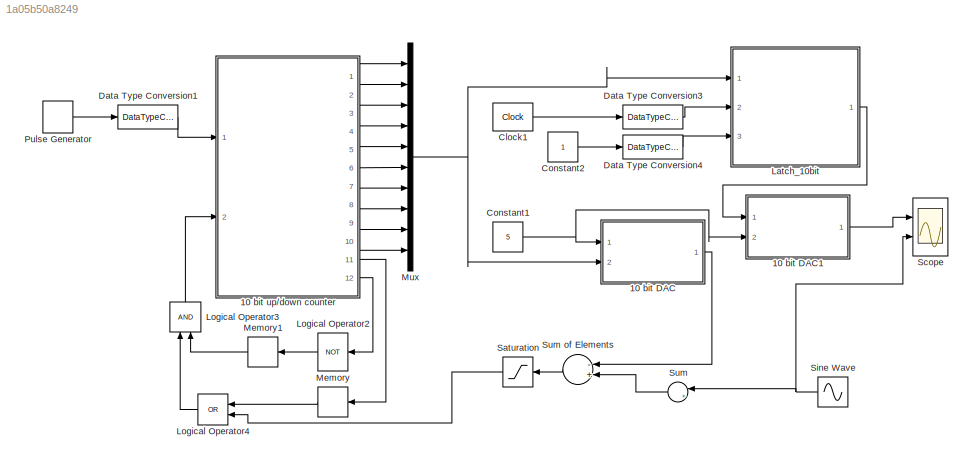
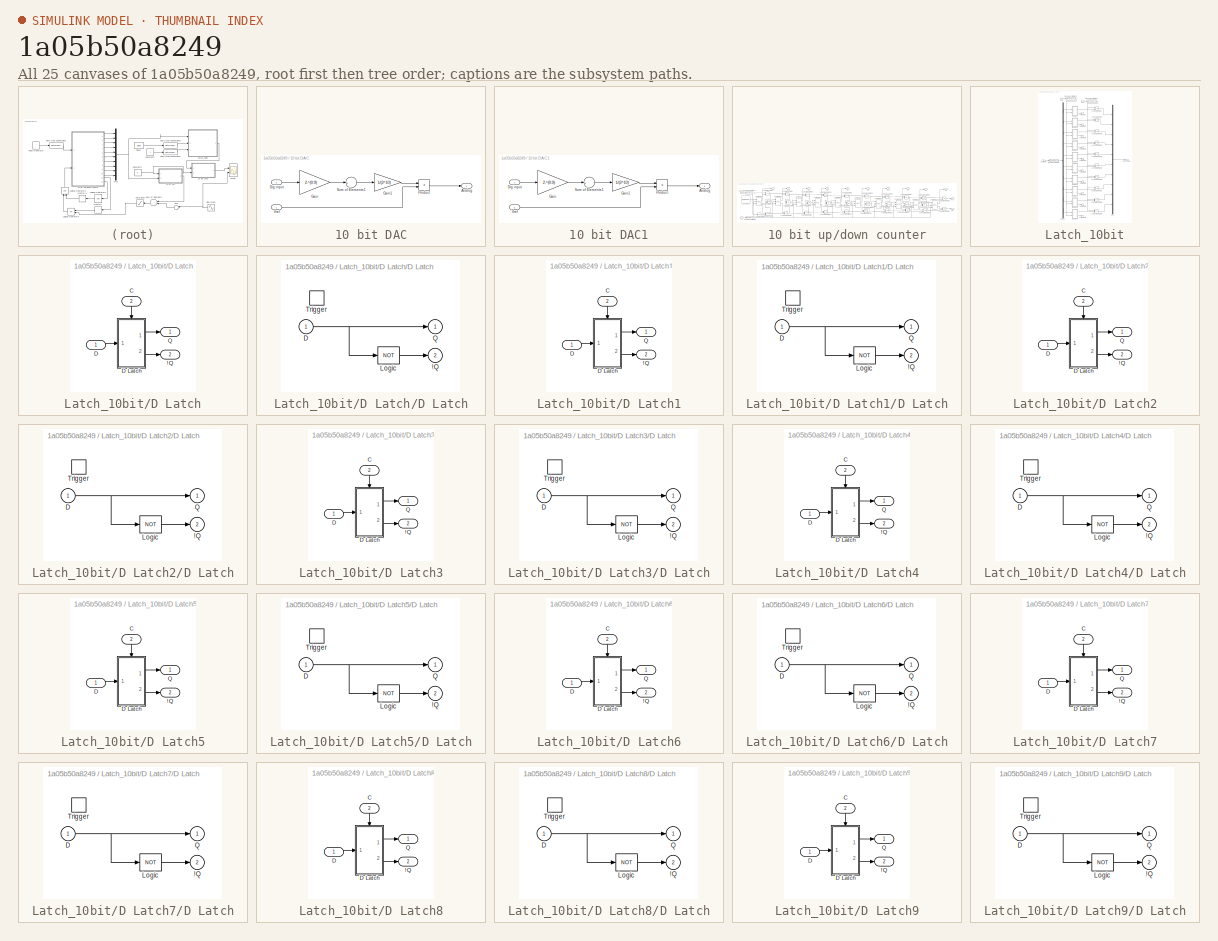
[diagram: thumbnail index - all 25 canvases of the model, root first then tree order]
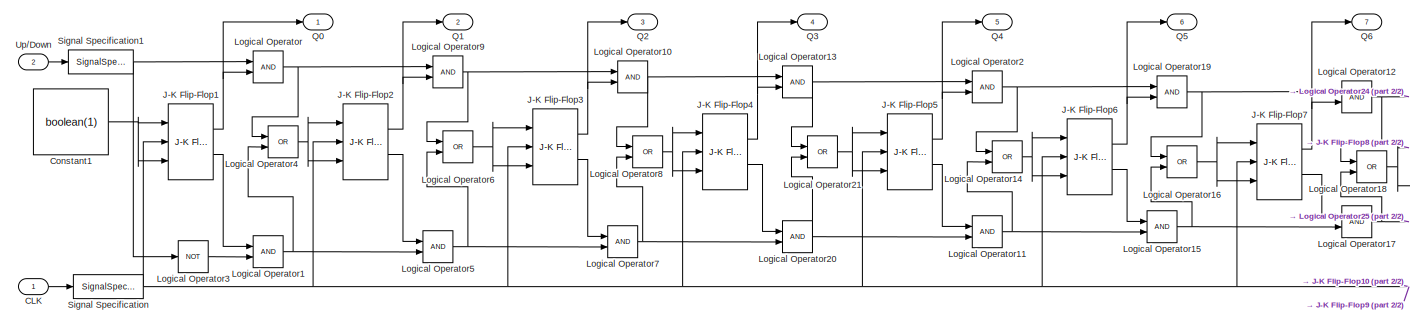
[diagram: 10 bit up/down counter - part 1/2, center side, full height]
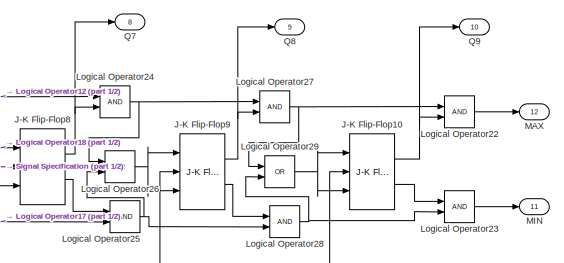
[diagram: 10 bit up/down counter - part 2/2, middle right region]
MODEL slx_1a05b50a8249
KIND model
CONFIG AbsTol = auto
CONFIG FixedStep = auto
CONFIG MaxStep = auto
CONFIG MinStep = auto
CONFIG RelTol = 1e-3
CONFIG SampleTimeConstraint = Unconstrained
CONFIG Solver = VariableStepAuto
CONFIG SolverMode = Auto
CONFIG SolverName = VariableStepAuto
CONFIG StartTime = 0.0
CONFIG StopTime = inf
BLOCK [SubSystem] 10 bit DAC
  Ports = [2, 1]
  RequestExecContextInheritance = off
  Variant = off
BLOCK [Outport] 10 bit DAC/Analog
  IconDisplay = Port number
BLOCK [Inport] 10 bit DAC/Dig input 
  IconDisplay = Port number
  Port = 2
BLOCK [Gain] 10 bit DAC/Gain
  Gain = 2.^(0:9)
  OutDataTypeStr = Inherit: Inherit via internal rule
  ParamDataTypeStr = Inherit: Inherit via internal rule
  SaturateOnIntegerOverflow = off
BLOCK [Gain] 10 bit DAC/Gain1
  Gain = 1/(2^10)
  OutDataTypeStr = Inherit: Inherit via internal rule
  ParamDataTypeStr = Inherit: Inherit via internal rule
  SaturateOnIntegerOverflow = off
BLOCK [Product] 10 bit DAC/Product
  InputSameDT = off
  OutDataTypeStr = Inherit: Inherit via internal rule
  Ports = [2, 1]
  SaturateOnIntegerOverflow = off
BLOCK [Sum] 10 bit DAC/Sum of Elements1
  InputSameDT = off
  Inputs = +
  OutDataTypeStr = Inherit: Inherit via internal rule
  Ports = [1, 1]
  SaturateOnIntegerOverflow = off
BLOCK [Inport] 10 bit DAC/Vref 
  IconDisplay = Port number
BLOCK [SubSystem] 10 bit DAC1
  Ports = [2, 1]
  RequestExecContextInheritance = off
  Variant = off
BLOCK [Outport] 10 bit DAC1/Analog
  IconDisplay = Port number
BLOCK [Inport] 10 bit DAC1/Dig input 
  IconDisplay = Port number
BLOCK [Gain] 10 bit DAC1/Gain
  Gain = 2.^(0:9)
  OutDataTypeStr = Inherit: Inherit via internal rule
  ParamDataTypeStr = Inherit: Inherit via internal rule
  SaturateOnIntegerOverflow = off
BLOCK [Gain] 10 bit DAC1/Gain1
  Gain = 1/(2^10)
  OutDataTypeStr = Inherit: Inherit via internal rule
  ParamDataTypeStr = Inherit: Inherit via internal rule
  SaturateOnIntegerOverflow = off
BLOCK [Product] 10 bit DAC1/Product
  InputSameDT = off
  OutDataTypeStr = Inherit: Inherit via internal rule
  Ports = [2, 1]
  SaturateOnIntegerOverflow = off
BLOCK [Sum] 10 bit DAC1/Sum of Elements1
  InputSameDT = off
  Inputs = +
  OutDataTypeStr = Inherit: Inherit via internal rule
  Ports = [1, 1]
  SaturateOnIntegerOverflow = off
BLOCK [Inport] 10 bit DAC1/Vref 
  IconDisplay = Port number
  Port = 2
BLOCK [SubSystem] 10 bit up//down counter
  Ports = [2, 12]
  RequestExecContextInheritance = off
  Variant = off
BLOCK [Inport] 10 bit up//down counter/CLK
  IconDisplay = Port number
BLOCK [Constant] 10 bit up//down counter/Constant1
  Value = boolean(1)
BLOCK [Reference] 10 bit up//down counter/J-K Flip-Flop1  REF=simulink_extras/Flip Flops/J-K
Flip-Flop
  Ports = [3, 2]
  SourceBlock = simulink_extras/Flip Flops/J-K\nFlip-Flop
  SourceType = JKFlipFlop
BLOCK [Reference] 10 bit up//down counter/J-K Flip-Flop10  REF=simulink_extras/Flip Flops/J-K
Flip-Flop
  Ports = [3, 2]
  SourceBlock = simulink_extras/Flip Flops/J-K\nFlip-Flop
  SourceType = JKFlipFlop
BLOCK [Reference] 10 bit up//down counter/J-K Flip-Flop2  REF=simulink_extras/Flip Flops/J-K
Flip-Flop
  Ports = [3, 2]
  SourceBlock = simulink_extras/Flip Flops/J-K\nFlip-Flop
  SourceType = JKFlipFlop
BLOCK [Reference] 10 bit up//down counter/J-K Flip-Flop3  REF=simulink_extras/Flip Flops/J-K
Flip-Flop
  Ports = [3, 2]
  SourceBlock = simulink_extras/Flip Flops/J-K\nFlip-Flop
  SourceType = JKFlipFlop
BLOCK [Reference] 10 bit up//down counter/J-K Flip-Flop4  REF=simulink_extras/Flip Flops/J-K
Flip-Flop
  Ports = [3, 2]
  SourceBlock = simulink_extras/Flip Flops/J-K\nFlip-Flop
  SourceType = JKFlipFlop
BLOCK [Reference] 10 bit up//down counter/J-K Flip-Flop5  REF=simulink_extras/Flip Flops/J-K
Flip-Flop
  Ports = [3, 2]
  SourceBlock = simulink_extras/Flip Flops/J-K\nFlip-Flop
  SourceType = JKFlipFlop
BLOCK [Reference] 10 bit up//down counter/J-K Flip-Flop6  REF=simulink_extras/Flip Flops/J-K
Flip-Flop
  Ports = [3, 2]
  SourceBlock = simulink_extras/Flip Flops/J-K\nFlip-Flop
  SourceType = JKFlipFlop
BLOCK [Reference] 10 bit up//down counter/J-K Flip-Flop7  REF=simulink_extras/Flip Flops/J-K
Flip-Flop
  Ports = [3, 2]
  SourceBlock = simulink_extras/Flip Flops/J-K\nFlip-Flop
  SourceType = JKFlipFlop
BLOCK [Reference] 10 bit up//down counter/J-K Flip-Flop8  REF=simulink_extras/Flip Flops/J-K
Flip-Flop
  Ports = [3, 2]
  SourceBlock = simulink_extras/Flip Flops/J-K\nFlip-Flop
  SourceType = JKFlipFlop
BLOCK [Reference] 10 bit up//down counter/J-K Flip-Flop9  REF=simulink_extras/Flip Flops/J-K
Flip-Flop
  Ports = [3, 2]
  SourceBlock = simulink_extras/Flip Flops/J-K\nFlip-Flop
  SourceType = JKFlipFlop
BLOCK [Logic] 10 bit up//down counter/Logical Operator
  AllPortsSameDT = off
  IconShape = distinctive
  OutDataTypeStr = boolean
  Ports = [2, 1]
BLOCK [Logic] 10 bit up//down counter/Logical Operator1
  AllPortsSameDT = off
  IconShape = distinctive
  OutDataTypeStr = boolean
  Ports = [2, 1]
BLOCK [Logic] 10 bit up//down counter/Logical Operator10
  AllPortsSameDT = off
  IconShape = distinctive
  OutDataTypeStr = boolean
  Ports = [2, 1]
BLOCK [Logic] 10 bit up//down counter/Logical Operator11
  AllPortsSameDT = off
  IconShape = distinctive
  OutDataTypeStr = boolean
  Ports = [2, 1]
BLOCK [Logic] 10 bit up//down counter/Logical Operator12
  AllPortsSameDT = off
  IconShape = distinctive
  OutDataTypeStr = boolean
  Ports = [2, 1]
BLOCK [Logic] 10 bit up//down counter/Logical Operator13
  AllPortsSameDT = off
  IconShape = distinctive
  OutDataTypeStr = boolean
  Ports = [2, 1]
BLOCK [Logic] 10 bit up//down counter/Logical Operator14
  AllPortsSameDT = off
  IconShape = distinctive
  Operator = OR
  OutDataTypeStr = boolean
  Ports = [2, 1]
BLOCK [Logic] 10 bit up//down counter/Logical Operator15
  AllPortsSameDT = off
  IconShape = distinctive
  OutDataTypeStr = boolean
  Ports = [2, 1]
BLOCK [Logic] 10 bit up//down counter/Logical Operator16
  AllPortsSameDT = off
  IconShape = distinctive
  Operator = OR
  OutDataTypeStr = boolean
  Ports = [2, 1]
BLOCK [Logic] 10 bit up//down counter/Logical Operator17
  AllPortsSameDT = off
  IconShape = distinctive
  OutDataTypeStr = boolean
  Ports = [2, 1]
BLOCK [Logic] 10 bit up//down counter/Logical Operator18
  AllPortsSameDT = off
  IconShape = distinctive
  Operator = OR
  OutDataTypeStr = boolean
  Ports = [2, 1]
BLOCK [Logic] 10 bit up//down counter/Logical Operator19
  AllPortsSameDT = off
  IconShape = distinctive
  OutDataTypeStr = boolean
  Ports = [2, 1]
BLOCK [Logic] 10 bit up//down counter/Logical Operator2
  AllPortsSameDT = off
  IconShape = distinctive
  OutDataTypeStr = boolean
  Ports = [2, 1]
BLOCK [Logic] 10 bit up//down counter/Logical Operator20
  AllPortsSameDT = off
  IconShape = distinctive
  OutDataTypeStr = boolean
  Ports = [2, 1]
BLOCK [Logic] 10 bit up//down counter/Logical Operator21
  AllPortsSameDT = off
  IconShape = distinctive
  Operator = OR
  OutDataTypeStr = boolean
  Ports = [2, 1]
BLOCK [Logic] 10 bit up//down counter/Logical Operator22
  AllPortsSameDT = off
  IconShape = distinctive
  OutDataTypeStr = boolean
  Ports = [2, 1]
BLOCK [Logic] 10 bit up//down counter/Logical Operator23
  AllPortsSameDT = off
  IconShape = distinctive
  OutDataTypeStr = boolean
  Ports = [2, 1]
BLOCK [Logic] 10 bit up//down counter/Logical Operator24
  AllPortsSameDT = off
  IconShape = distinctive
  OutDataTypeStr = boolean
  Ports = [2, 1]
BLOCK [Logic] 10 bit up//down counter/Logical Operator25
  AllPortsSameDT = off
  IconShape = distinctive
  OutDataTypeStr = boolean
  Ports = [2, 1]
BLOCK [Logic] 10 bit up//down counter/Logical Operator26
  AllPortsSameDT = off
  IconShape = distinctive
  Operator = OR
  OutDataTypeStr = boolean
  Ports = [2, 1]
BLOCK [Logic] 10 bit up//down counter/Logical Operator27
  AllPortsSameDT = off
  IconShape = distinctive
  OutDataTypeStr = boolean
  Ports = [2, 1]
BLOCK [Logic] 10 bit up//down counter/Logical Operator28
  AllPortsSameDT = off
  IconShape = distinctive
  OutDataTypeStr = boolean
  Ports = [2, 1]
BLOCK [Logic] 10 bit up//down counter/Logical Operator29
  AllPortsSameDT = off
  IconShape = distinctive
  Operator = OR
  OutDataTypeStr = boolean
  Ports = [2, 1]
BLOCK [Logic] 10 bit up//down counter/Logical Operator3
  AllPortsSameDT = off
  IconShape = distinctive
  Operator = NOT
  OutDataTypeStr = boolean
  Ports = [1, 1]
BLOCK [Logic] 10 bit up//down counter/Logical Operator4
  AllPortsSameDT = off
  IconShape = distinctive
  Operator = OR
  OutDataTypeStr = boolean
  Ports = [2, 1]
BLOCK [Logic] 10 bit up//down counter/Logical Operator5
  AllPortsSameDT = off
  IconShape = distinctive
  OutDataTypeStr = boolean
  Ports = [2, 1]
BLOCK [Logic] 10 bit up//down counter/Logical Operator6
  AllPortsSameDT = off
  IconShape = distinctive
  Operator = OR
  OutDataTypeStr = boolean
  Ports = [2, 1]
BLOCK [Logic] 10 bit up//down counter/Logical Operator7
  AllPortsSameDT = off
  IconShape = distinctive
  OutDataTypeStr = boolean
  Ports = [2, 1]
BLOCK [Logic] 10 bit up//down counter/Logical Operator8
  AllPortsSameDT = off
  IconShape = distinctive
  Operator = OR
  OutDataTypeStr = boolean
  Ports = [2, 1]
BLOCK [Logic] 10 bit up//down counter/Logical Operator9
  AllPortsSameDT = off
  IconShape = distinctive
  OutDataTypeStr = boolean
  Ports = [2, 1]
BLOCK [Outport] 10 bit up//down counter/MAX
  IconDisplay = Port number
  InitialOutput = 0
  Port = 12
BLOCK [Outport] 10 bit up//down counter/MIN
  IconDisplay = Port number
  InitialOutput = 0
  Port = 11
BLOCK [Outport] 10 bit up//down counter/Q0
  IconDisplay = Port number
  InitialOutput = 0
BLOCK [Outport] 10 bit up//down counter/Q1
  IconDisplay = Port number
  InitialOutput = 0
  Port = 2
BLOCK [Outport] 10 bit up//down counter/Q2
  IconDisplay = Port number
  InitialOutput = 0
  Port = 3
BLOCK [Outport] 10 bit up//down counter/Q3
  IconDisplay = Port number
  InitialOutput = 0
  Port = 4
BLOCK [Outport] 10 bit up//down counter/Q4
  IconDisplay = Port number
  InitialOutput = 0
  Port = 5
BLOCK [Outport] 10 bit up//down counter/Q5
  IconDisplay = Port number
  InitialOutput = 0
  Port = 6
BLOCK [Outport] 10 bit up//down counter/Q6
  IconDisplay = Port number
  InitialOutput = 0
  Port = 7
BLOCK [Outport] 10 bit up//down counter/Q7
  IconDisplay = Port number
  InitialOutput = 0
  Port = 8
BLOCK [Outport] 10 bit up//down counter/Q8
  IconDisplay = Port number
  InitialOutput = 0
  Port = 9
BLOCK [Outport] 10 bit up//down counter/Q9
  IconDisplay = Port number
  InitialOutput = 0
  Port = 10
BLOCK [SignalSpecification] 10 bit up//down counter/Signal Specification
  OutDataTypeStr = boolean
BLOCK [SignalSpecification] 10 bit up//down counter/Signal Specification1
  OutDataTypeStr = boolean
BLOCK [Inport] 10 bit up//down counter/Up//Down
  IconDisplay = Port number
  Port = 2
BLOCK [Reference] Clock1  REF=simulink_extras/Flip Flops/Clock
  Ports = [0, 1]
  SourceBlock = simulink_extras/Flip Flops/Clock
  SourceType = Digital clock
BLOCK [Constant] Constant1
  Value = 5
BLOCK [Constant] Constant2
BLOCK [DataTypeConversion] Data Type Conversion1
  OutDataTypeStr = boolean
  RndMeth = Floor
  SaturateOnIntegerOverflow = off
BLOCK [DataTypeConversion] Data Type Conversion3
  OutDataTypeStr = boolean
  RndMeth = Floor
  SaturateOnIntegerOverflow = off
BLOCK [DataTypeConversion] Data Type Conversion4
  OutDataTypeStr = boolean
  RndMeth = Floor
  SaturateOnIntegerOverflow = off
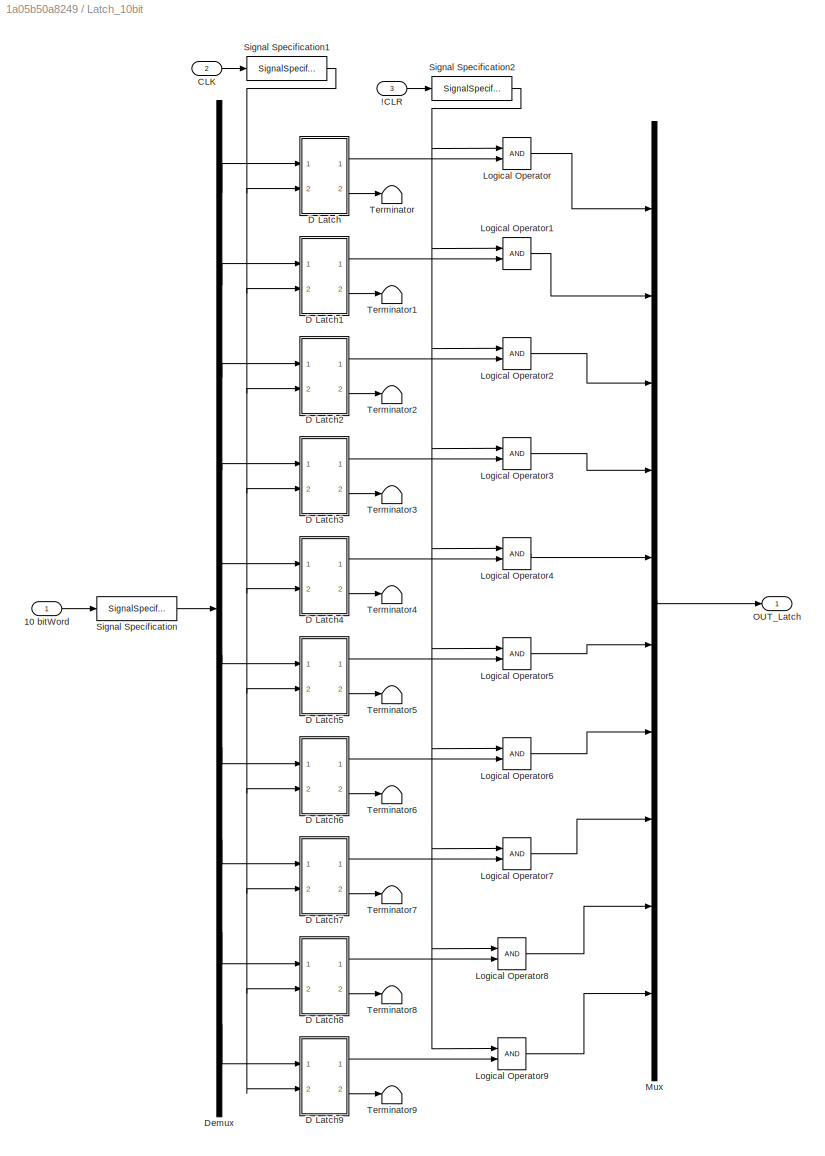
BLOCK [SubSystem] Latch_10bit
  AncestorBlock = Digital_8bit_Library/Latch_8bit
  Ports = [3, 1]
  RequestExecContextInheritance = off
  Variant = off
BLOCK [Inport] Latch_10bit/!CLR
  IconDisplay = Port number
  Port = 3
BLOCK [Inport] Latch_10bit/10 bitWord
  IconDisplay = Port number
BLOCK [Inport] Latch_10bit/CLK
  IconDisplay = Port number
  Port = 2
BLOCK [SubSystem] Latch_10bit/D Latch
  Ports = [2, 2]
  RequestExecContextInheritance = off
  Variant = off
BLOCK [Outport] Latch_10bit/D Latch/!Q
  IconDisplay = Port number
  InitialOutput = 1
  Port = 2
BLOCK [Inport] Latch_10bit/D Latch/C
  IconDisplay = Port number
  Port = 2
BLOCK [Inport] Latch_10bit/D Latch/D
  IconDisplay = Port number
BLOCK [SubSystem] Latch_10bit/D Latch/D Latch
  Ports = [1, 2, 0, 1]
  RequestExecContextInheritance = off
  TreatAsAtomicUnit = on
  Variant = off
BLOCK [Outport] Latch_10bit/D Latch/D Latch/!Q
  IconDisplay = Port number
  InitialOutput = 1
  Port = 2
BLOCK [Inport] Latch_10bit/D Latch/D Latch/D
  IconDisplay = Port number
BLOCK [Logic] Latch_10bit/D Latch/D Latch/Logic
  Inputs = 1
  Operator = NOT
  Ports = [1, 1]
BLOCK [Outport] Latch_10bit/D Latch/D Latch/Q
  IconDisplay = Port number
  InitialOutput = 0
BLOCK [TriggerPort] Latch_10bit/D Latch/D Latch/Trigger
  Ports = []
  StatesWhenEnabling = held
  VariantControl = Variant
BLOCK [Outport] Latch_10bit/D Latch/Q
  IconDisplay = Port number
  InitialOutput = 0
BLOCK [SubSystem] Latch_10bit/D Latch1
  Ports = [2, 2]
  RequestExecContextInheritance = off
  Variant = off
BLOCK [Outport] Latch_10bit/D Latch1/!Q
  IconDisplay = Port number
  InitialOutput = 1
  Port = 2
BLOCK [Inport] Latch_10bit/D Latch1/C
  IconDisplay = Port number
  Port = 2
BLOCK [Inport] Latch_10bit/D Latch1/D
  IconDisplay = Port number
BLOCK [SubSystem] Latch_10bit/D Latch1/D Latch
  Ports = [1, 2, 0, 1]
  RequestExecContextInheritance = off
  TreatAsAtomicUnit = on
  Variant = off
BLOCK [Outport] Latch_10bit/D Latch1/D Latch/!Q
  IconDisplay = Port number
  InitialOutput = 1
  Port = 2
BLOCK [Inport] Latch_10bit/D Latch1/D Latch/D
  IconDisplay = Port number
BLOCK [Logic] Latch_10bit/D Latch1/D Latch/Logic
  Inputs = 1
  Operator = NOT
  Ports = [1, 1]
BLOCK [Outport] Latch_10bit/D Latch1/D Latch/Q
  IconDisplay = Port number
  InitialOutput = 0
BLOCK [TriggerPort] Latch_10bit/D Latch1/D Latch/Trigger
  Ports = []
  StatesWhenEnabling = held
  VariantControl = Variant
BLOCK [Outport] Latch_10bit/D Latch1/Q
  IconDisplay = Port number
  InitialOutput = 0
BLOCK [SubSystem] Latch_10bit/D Latch2
  Ports = [2, 2]
  RequestExecContextInheritance = off
  Variant = off
BLOCK [Outport] Latch_10bit/D Latch2/!Q
  IconDisplay = Port number
  InitialOutput = 1
  Port = 2
BLOCK [Inport] Latch_10bit/D Latch2/C
  IconDisplay = Port number
  Port = 2
BLOCK [Inport] Latch_10bit/D Latch2/D
  IconDisplay = Port number
BLOCK [SubSystem] Latch_10bit/D Latch2/D Latch
  Ports = [1, 2, 0, 1]
  RequestExecContextInheritance = off
  TreatAsAtomicUnit = on
  Variant = off
BLOCK [Outport] Latch_10bit/D Latch2/D Latch/!Q
  IconDisplay = Port number
  InitialOutput = 1
  Port = 2
BLOCK [Inport] Latch_10bit/D Latch2/D Latch/D
  IconDisplay = Port number
BLOCK [Logic] Latch_10bit/D Latch2/D Latch/Logic
  Inputs = 1
  Operator = NOT
  Ports = [1, 1]
BLOCK [Outport] Latch_10bit/D Latch2/D Latch/Q
  IconDisplay = Port number
  InitialOutput = 0
BLOCK [TriggerPort] Latch_10bit/D Latch2/D Latch/Trigger
  Ports = []
  StatesWhenEnabling = held
  VariantControl = Variant
BLOCK [Outport] Latch_10bit/D Latch2/Q
  IconDisplay = Port number
  InitialOutput = 0
BLOCK [SubSystem] Latch_10bit/D Latch3
  Ports = [2, 2]
  RequestExecContextInheritance = off
  Variant = off
BLOCK [Outport] Latch_10bit/D Latch3/!Q
  IconDisplay = Port number
  InitialOutput = 1
  Port = 2
BLOCK [Inport] Latch_10bit/D Latch3/C
  IconDisplay = Port number
  Port = 2
BLOCK [Inport] Latch_10bit/D Latch3/D
  IconDisplay = Port number
BLOCK [SubSystem] Latch_10bit/D Latch3/D Latch
  Ports = [1, 2, 0, 1]
  RequestExecContextInheritance = off
  TreatAsAtomicUnit = on
  Variant = off
BLOCK [Outport] Latch_10bit/D Latch3/D Latch/!Q
  IconDisplay = Port number
  InitialOutput = 1
  Port = 2
BLOCK [Inport] Latch_10bit/D Latch3/D Latch/D
  IconDisplay = Port number
BLOCK [Logic] Latch_10bit/D Latch3/D Latch/Logic
  Inputs = 1
  Operator = NOT
  Ports = [1, 1]
BLOCK [Outport] Latch_10bit/D Latch3/D Latch/Q
  IconDisplay = Port number
  InitialOutput = 0
BLOCK [TriggerPort] Latch_10bit/D Latch3/D Latch/Trigger
  Ports = []
  StatesWhenEnabling = held
  VariantControl = Variant
BLOCK [Outport] Latch_10bit/D Latch3/Q
  IconDisplay = Port number
  InitialOutput = 0
BLOCK [SubSystem] Latch_10bit/D Latch4
  Ports = [2, 2]
  RequestExecContextInheritance = off
  Variant = off
BLOCK [Outport] Latch_10bit/D Latch4/!Q
  IconDisplay = Port number
  InitialOutput = 1
  Port = 2
BLOCK [Inport] Latch_10bit/D Latch4/C
  IconDisplay = Port number
  Port = 2
BLOCK [Inport] Latch_10bit/D Latch4/D
  IconDisplay = Port number
BLOCK [SubSystem] Latch_10bit/D Latch4/D Latch
  Ports = [1, 2, 0, 1]
  RequestExecContextInheritance = off
  TreatAsAtomicUnit = on
  Variant = off
BLOCK [Outport] Latch_10bit/D Latch4/D Latch/!Q
  IconDisplay = Port number
  InitialOutput = 1
  Port = 2
BLOCK [Inport] Latch_10bit/D Latch4/D Latch/D
  IconDisplay = Port number
BLOCK [Logic] Latch_10bit/D Latch4/D Latch/Logic
  Inputs = 1
  Operator = NOT
  Ports = [1, 1]
BLOCK [Outport] Latch_10bit/D Latch4/D Latch/Q
  IconDisplay = Port number
  InitialOutput = 0
BLOCK [TriggerPort] Latch_10bit/D Latch4/D Latch/Trigger
  Ports = []
  StatesWhenEnabling = held
  VariantControl = Variant
BLOCK [Outport] Latch_10bit/D Latch4/Q
  IconDisplay = Port number
  InitialOutput = 0
BLOCK [SubSystem] Latch_10bit/D Latch5
  Ports = [2, 2]
  RequestExecContextInheritance = off
  Variant = off
BLOCK [Outport] Latch_10bit/D Latch5/!Q
  IconDisplay = Port number
  InitialOutput = 1
  Port = 2
BLOCK [Inport] Latch_10bit/D Latch5/C
  IconDisplay = Port number
  Port = 2
BLOCK [Inport] Latch_10bit/D Latch5/D
  IconDisplay = Port number
BLOCK [SubSystem] Latch_10bit/D Latch5/D Latch
  Ports = [1, 2, 0, 1]
  RequestExecContextInheritance = off
  TreatAsAtomicUnit = on
  Variant = off
BLOCK [Outport] Latch_10bit/D Latch5/D Latch/!Q
  IconDisplay = Port number
  InitialOutput = 1
  Port = 2
BLOCK [Inport] Latch_10bit/D Latch5/D Latch/D
  IconDisplay = Port number
BLOCK [Logic] Latch_10bit/D Latch5/D Latch/Logic
  Inputs = 1
  Operator = NOT
  Ports = [1, 1]
BLOCK [Outport] Latch_10bit/D Latch5/D Latch/Q
  IconDisplay = Port number
  InitialOutput = 0
BLOCK [TriggerPort] Latch_10bit/D Latch5/D Latch/Trigger
  Ports = []
  StatesWhenEnabling = held
  VariantControl = Variant
BLOCK [Outport] Latch_10bit/D Latch5/Q
  IconDisplay = Port number
  InitialOutput = 0
BLOCK [SubSystem] Latch_10bit/D Latch6
  Ports = [2, 2]
  RequestExecContextInheritance = off
  Variant = off
BLOCK [Outport] Latch_10bit/D Latch6/!Q
  IconDisplay = Port number
  InitialOutput = 1
  Port = 2
BLOCK [Inport] Latch_10bit/D Latch6/C
  IconDisplay = Port number
  Port = 2
BLOCK [Inport] Latch_10bit/D Latch6/D
  IconDisplay = Port number
BLOCK [SubSystem] Latch_10bit/D Latch6/D Latch
  Ports = [1, 2, 0, 1]
  RequestExecContextInheritance = off
  TreatAsAtomicUnit = on
  Variant = off
BLOCK [Outport] Latch_10bit/D Latch6/D Latch/!Q
  IconDisplay = Port number
  InitialOutput = 1
  Port = 2
BLOCK [Inport] Latch_10bit/D Latch6/D Latch/D
  IconDisplay = Port number
BLOCK [Logic] Latch_10bit/D Latch6/D Latch/Logic
  Inputs = 1
  Operator = NOT
  Ports = [1, 1]
BLOCK [Outport] Latch_10bit/D Latch6/D Latch/Q
  IconDisplay = Port number
  InitialOutput = 0
BLOCK [TriggerPort] Latch_10bit/D Latch6/D Latch/Trigger
  Ports = []
  StatesWhenEnabling = held
  VariantControl = Variant
BLOCK [Outport] Latch_10bit/D Latch6/Q
  IconDisplay = Port number
  InitialOutput = 0
BLOCK [SubSystem] Latch_10bit/D Latch7
  Ports = [2, 2]
  RequestExecContextInheritance = off
  Variant = off
BLOCK [Outport] Latch_10bit/D Latch7/!Q
  IconDisplay = Port number
  InitialOutput = 1
  Port = 2
BLOCK [Inport] Latch_10bit/D Latch7/C
  IconDisplay = Port number
  Port = 2
BLOCK [Inport] Latch_10bit/D Latch7/D
  IconDisplay = Port number
BLOCK [SubSystem] Latch_10bit/D Latch7/D Latch
  Ports = [1, 2, 0, 1]
  RequestExecContextInheritance = off
  TreatAsAtomicUnit = on
  Variant = off
BLOCK [Outport] Latch_10bit/D Latch7/D Latch/!Q
  IconDisplay = Port number
  InitialOutput = 1
  Port = 2
BLOCK [Inport] Latch_10bit/D Latch7/D Latch/D
  IconDisplay = Port number
BLOCK [Logic] Latch_10bit/D Latch7/D Latch/Logic
  Inputs = 1
  Operator = NOT
  Ports = [1, 1]
BLOCK [Outport] Latch_10bit/D Latch7/D Latch/Q
  IconDisplay = Port number
  InitialOutput = 0
BLOCK [TriggerPort] Latch_10bit/D Latch7/D Latch/Trigger
  Ports = []
  StatesWhenEnabling = held
  VariantControl = Variant
BLOCK [Outport] Latch_10bit/D Latch7/Q
  IconDisplay = Port number
  InitialOutput = 0
BLOCK [SubSystem] Latch_10bit/D Latch8
  Ports = [2, 2]
  RequestExecContextInheritance = off
  Variant = off
BLOCK [Outport] Latch_10bit/D Latch8/!Q
  IconDisplay = Port number
  InitialOutput = 1
  Port = 2
BLOCK [Inport] Latch_10bit/D Latch8/C
  IconDisplay = Port number
  Port = 2
BLOCK [Inport] Latch_10bit/D Latch8/D
  IconDisplay = Port number
BLOCK [SubSystem] Latch_10bit/D Latch8/D Latch
  Ports = [1, 2, 0, 1]
  RequestExecContextInheritance = off
  TreatAsAtomicUnit = on
  Variant = off
BLOCK [Outport] Latch_10bit/D Latch8/D Latch/!Q
  IconDisplay = Port number
  InitialOutput = 1
  Port = 2
BLOCK [Inport] Latch_10bit/D Latch8/D Latch/D
  IconDisplay = Port number
BLOCK [Logic] Latch_10bit/D Latch8/D Latch/Logic
  Inputs = 1
  Operator = NOT
  Ports = [1, 1]
BLOCK [Outport] Latch_10bit/D Latch8/D Latch/Q
  IconDisplay = Port number
  InitialOutput = 0
BLOCK [TriggerPort] Latch_10bit/D Latch8/D Latch/Trigger
  Ports = []
  StatesWhenEnabling = held
  VariantControl = Variant
BLOCK [Outport] Latch_10bit/D Latch8/Q
  IconDisplay = Port number
  InitialOutput = 0
BLOCK [SubSystem] Latch_10bit/D Latch9
  Ports = [2, 2]
  RequestExecContextInheritance = off
  Variant = off
BLOCK [Outport] Latch_10bit/D Latch9/!Q
  IconDisplay = Port number
  InitialOutput = 1
  Port = 2
BLOCK [Inport] Latch_10bit/D Latch9/C
  IconDisplay = Port number
  Port = 2
BLOCK [Inport] Latch_10bit/D Latch9/D
  IconDisplay = Port number
BLOCK [SubSystem] Latch_10bit/D Latch9/D Latch
  Ports = [1, 2, 0, 1]
  RequestExecContextInheritance = off
  TreatAsAtomicUnit = on
  Variant = off
BLOCK [Outport] Latch_10bit/D Latch9/D Latch/!Q
  IconDisplay = Port number
  InitialOutput = 1
  Port = 2
BLOCK [Inport] Latch_10bit/D Latch9/D Latch/D
  IconDisplay = Port number
BLOCK [Logic] Latch_10bit/D Latch9/D Latch/Logic
  Inputs = 1
  Operator = NOT
  Ports = [1, 1]
BLOCK [Outport] Latch_10bit/D Latch9/D Latch/Q
  IconDisplay = Port number
  InitialOutput = 0
BLOCK [TriggerPort] Latch_10bit/D Latch9/D Latch/Trigger
  Ports = []
  StatesWhenEnabling = held
  VariantControl = Variant
BLOCK [Outport] Latch_10bit/D Latch9/Q
  IconDisplay = Port number
  InitialOutput = 0
BLOCK [Demux] Latch_10bit/Demux
  DisplayOption = bar
  Outputs = 10
  Ports = [1, 10]
BLOCK [Logic] Latch_10bit/Logical Operator
  AllPortsSameDT = off
  IconShape = distinctive
  OutDataTypeStr = boolean
  Ports = [2, 1]
BLOCK [Logic] Latch_10bit/Logical Operator1
  AllPortsSameDT = off
  IconShape = distinctive
  OutDataTypeStr = boolean
  Ports = [2, 1]
BLOCK [Logic] Latch_10bit/Logical Operator2
  AllPortsSameDT = off
  IconShape = distinctive
  OutDataTypeStr = boolean
  Ports = [2, 1]
BLOCK [Logic] Latch_10bit/Logical Operator3
  AllPortsSameDT = off
  IconShape = distinctive
  OutDataTypeStr = boolean
  Ports = [2, 1]
BLOCK [Logic] Latch_10bit/Logical Operator4
  AllPortsSameDT = off
  IconShape = distinctive
  OutDataTypeStr = boolean
  Ports = [2, 1]
BLOCK [Logic] Latch_10bit/Logical Operator5
  AllPortsSameDT = off
  IconShape = distinctive
  OutDataTypeStr = boolean
  Ports = [2, 1]
BLOCK [Logic] Latch_10bit/Logical Operator6
  AllPortsSameDT = off
  IconShape = distinctive
  OutDataTypeStr = boolean
  Ports = [2, 1]
BLOCK [Logic] Latch_10bit/Logical Operator7
  AllPortsSameDT = off
  IconShape = distinctive
  OutDataTypeStr = boolean
  Ports = [2, 1]
BLOCK [Logic] Latch_10bit/Logical Operator8
  AllPortsSameDT = off
  IconShape = distinctive
  OutDataTypeStr = boolean
  Ports = [2, 1]
BLOCK [Logic] Latch_10bit/Logical Operator9
  AllPortsSameDT = off
  IconShape = distinctive
  OutDataTypeStr = boolean
  Ports = [2, 1]
BLOCK [Mux] Latch_10bit/Mux
  DisplayOption = bar
  Inputs = 10
  Ports = [10, 1]
BLOCK [Outport] Latch_10bit/OUT_Latch
  IconDisplay = Port number
BLOCK [SignalSpecification] Latch_10bit/Signal Specification
  OutDataTypeStr = boolean
BLOCK [SignalSpecification] Latch_10bit/Signal Specification1
  OutDataTypeStr = boolean
BLOCK [SignalSpecification] Latch_10bit/Signal Specification2
  OutDataTypeStr = boolean
BLOCK [Terminator] Latch_10bit/Terminator
BLOCK [Terminator] Latch_10bit/Terminator1
BLOCK [Terminator] Latch_10bit/Terminator2
BLOCK [Terminator] Latch_10bit/Terminator3
BLOCK [Terminator] Latch_10bit/Terminator4
BLOCK [Terminator] Latch_10bit/Terminator5
BLOCK [Terminator] Latch_10bit/Terminator6
BLOCK [Terminator] Latch_10bit/Terminator7
BLOCK [Terminator] Latch_10bit/Terminator8
BLOCK [Terminator] Latch_10bit/Terminator9
BLOCK [Logic] Logical Operator2
  AllPortsSameDT = off
  Operator = NOT
  OutDataTypeStr = boolean
  Ports = [1, 1]
BLOCK [Logic] Logical Operator3
  AllPortsSameDT = off
  OutDataTypeStr = boolean
  Ports = [2, 1]
BLOCK [Logic] Logical Operator4
  AllPortsSameDT = off
  Operator = OR
  OutDataTypeStr = boolean
  Ports = [2, 1]
BLOCK [Memory] Memory
BLOCK [Memory] Memory1
BLOCK [Mux] Mux
  DisplayOption = bar
  Inputs = 10
  Ports = [10, 1]
BLOCK [DiscretePulseGenerator] Pulse Generator
  Amplitude = 5
  Period = 0.000008
  Ports = [0, 1]
  PulseType = Time based
  PulseWidth = 5
BLOCK [Saturate] Saturation
  InputPortMap = u0
  LowerLimit = 0
  Ports = [1, 1]
  UpperLimit = 1
BLOCK [Scope] Scope
  NumInputPorts = 2
  Ports = [2]
  ScopeSpecificationString = Simulink.scopes.TimeScopeBlockCfg('CurrentConfiguration', extmgr.ConfigurationSet(extmgr.Configuration('Core','General UI',true),extmgr.Configuration('Core','Source UI',true),extmgr.Configuration('Sources','WiredSimulink',true),extmgr.Configuration('Visuals','Time Domain',true,'SerializedDisplays',{struct('MinYLimReal','-0.62378','MaxYLimReal','5.61401','YLabelReal','','MinYLimMag','0.00000','MaxY...<+1493ch>
BLOCK [Sin] Sine Wave
  Amplitude = 2.49
  Bias = 2.5
  Frequency = 10*2*3.142
  Ports = [0, 1]
  SampleTime = 0
BLOCK [Sum] Sum
  IconShape = round
  InputSameDT = off
  Inputs = |++
  OutDataTypeStr = Inherit: Inherit via internal rule
  Ports = [2, 1]
  SaturateOnIntegerOverflow = off
BLOCK [Sum] Sum of Elements
  InputSameDT = off
  Inputs = -+
  OutDataTypeStr = Inherit: Inherit via internal rule
  Ports = [2, 1]
  SaturateOnIntegerOverflow = off
LINE 10 bit DAC/Dig input :1 -> 10 bit DAC/Gain:1
LINE 10 bit DAC/Gain1:1 -> 10 bit DAC/Product:1
LINE 10 bit DAC/Gain:1 -> 10 bit DAC/Sum of Elements1:1
LINE 10 bit DAC/Product:1 -> 10 bit DAC/Analog:1
LINE 10 bit DAC/Sum of Elements1:1 -> 10 bit DAC/Gain1:1
LINE 10 bit DAC/Vref :1 -> 10 bit DAC/Product:2
LINE 10 bit DAC1/Dig input :1 -> 10 bit DAC1/Gain:1
LINE 10 bit DAC1/Gain1:1 -> 10 bit DAC1/Product:1
LINE 10 bit DAC1/Gain:1 -> 10 bit DAC1/Sum of Elements1:1
LINE 10 bit DAC1/Product:1 -> 10 bit DAC1/Analog:1
LINE 10 bit DAC1/Sum of Elements1:1 -> 10 bit DAC1/Gain1:1
LINE 10 bit DAC1/Vref :1 -> 10 bit DAC1/Product:2
LINE 10 bit DAC1:1 -> Scope:1
LINE 10 bit DAC:1 -> Sum of Elements:1
LINE 10 bit up//down counter/CLK:1 -> 10 bit up//down counter/Signal Specification:1
NET 10 bit up//down counter/Constant1:1 -> 10 bit up//down counter/J-K Flip-Flop1:1, 10 bit up//down counter/J-K Flip-Flop1:3
NET 10 bit up//down counter/J-K Flip-Flop10:1 -> 10 bit up//down counter/Logical Operator22:2, 10 bit up//down counter/Q9:1
LINE 10 bit up//down counter/J-K Flip-Flop10:2 -> 10 bit up//down counter/Logical Operator23:1
NET 10 bit up//down counter/J-K Flip-Flop1:1 -> 10 bit up//down counter/Logical Operator:2, 10 bit up//down counter/Q0:1
LINE 10 bit up//down counter/J-K Flip-Flop1:2 -> 10 bit up//down counter/Logical Operator1:1
NET 10 bit up//down counter/J-K Flip-Flop2:1 -> 10 bit up//down counter/Logical Operator9:2, 10 bit up//down counter/Q1:1
LINE 10 bit up//down counter/J-K Flip-Flop2:2 -> 10 bit up//down counter/Logical Operator5:1
NET 10 bit up//down counter/J-K Flip-Flop3:1 -> 10 bit up//down counter/Logical Operator10:2, 10 bit up//down counter/Q2:1
LINE 10 bit up//down counter/J-K Flip-Flop3:2 -> 10 bit up//down counter/Logical Operator7:1
NET 10 bit up//down counter/J-K Flip-Flop4:1 -> 10 bit up//down counter/Logical Operator13:2, 10 bit up//down counter/Q3:1
LINE 10 bit up//down counter/J-K Flip-Flop4:2 -> 10 bit up//down counter/Logical Operator20:1
NET 10 bit up//down counter/J-K Flip-Flop5:1 -> 10 bit up//down counter/Logical Operator2:2, 10 bit up//down counter/Q4:1
LINE 10 bit up//down counter/J-K Flip-Flop5:2 -> 10 bit up//down counter/Logical Operator11:1
NET 10 bit up//down counter/J-K Flip-Flop6:1 -> 10 bit up//down counter/Logical Operator19:2, 10 bit up//down counter/Q5:1
LINE 10 bit up//down counter/J-K Flip-Flop6:2 -> 10 bit up//down counter/Logical Operator15:1
NET 10 bit up//down counter/J-K Flip-Flop7:1 -> 10 bit up//down counter/Logical Operator12:2, 10 bit up//down counter/Q6:1
LINE 10 bit up//down counter/J-K Flip-Flop7:2 -> 10 bit up//down counter/Logical Operator17:1
NET 10 bit up//down counter/J-K Flip-Flop8:1 -> 10 bit up//down counter/Logical Operator24:2, 10 bit up//down counter/Q7:1
LINE 10 bit up//down counter/J-K Flip-Flop8:2 -> 10 bit up//down counter/Logical Operator25:1
NET 10 bit up//down counter/J-K Flip-Flop9:1 -> 10 bit up//down counter/Logical Operator27:2, 10 bit up//down counter/Q8:1
LINE 10 bit up//down counter/J-K Flip-Flop9:2 -> 10 bit up//down counter/Logical Operator28:1
NET 10 bit up//down counter/Logical Operator10:1 -> 10 bit up//down counter/Logical Operator13:1, 10 bit up//down counter/Logical Operator8:1
NET 10 bit up//down counter/Logical Operator11:1 -> 10 bit up//down counter/Logical Operator14:2, 10 bit up//down counter/Logical Operator15:2
NET 10 bit up//down counter/Logical Operator12:1 -> 10 bit up//down counter/Logical Operator18:1, 10 bit up//down counter/Logical Operator24:1
NET 10 bit up//down counter/Logical Operator13:1 -> 10 bit up//down counter/Logical Operator21:1, 10 bit up//down counter/Logical Operator2:1
NET 10 bit up//down counter/Logical Operator14:1 -> 10 bit up//down counter/J-K Flip-Flop6:1, 10 bit up//down counter/J-K Flip-Flop6:3
NET 10 bit up//down counter/Logical Operator15:1 -> 10 bit up//down counter/Logical Operator16:2, 10 bit up//down counter/Logical Operator17:2
NET 10 bit up//down counter/Logical Operator16:1 -> 10 bit up//down counter/J-K Flip-Flop7:1, 10 bit up//down counter/J-K Flip-Flop7:3
NET 10 bit up//down counter/Logical Operator17:1 -> 10 bit up//down counter/Logical Operator18:2, 10 bit up//down counter/Logical Operator25:2
NET 10 bit up//down counter/Logical Operator18:1 -> 10 bit up//down counter/J-K Flip-Flop8:1, 10 bit up//down counter/J-K Flip-Flop8:3
NET 10 bit up//down counter/Logical Operator19:1 -> 10 bit up//down counter/Logical Operator12:1, 10 bit up//down counter/Logical Operator16:1
NET 10 bit up//down counter/Logical Operator1:1 -> 10 bit up//down counter/Logical Operator4:2, 10 bit up//down counter/Logical Operator5:2
NET 10 bit up//down counter/Logical Operator20:1 -> 10 bit up//down counter/Logical Operator11:2, 10 bit up//down counter/Logical Operator21:2
NET 10 bit up//down counter/Logical Operator21:1 -> 10 bit up//down counter/J-K Flip-Flop5:1, 10 bit up//down counter/J-K Flip-Flop5:3
LINE 10 bit up//down counter/Logical Operator22:1 -> 10 bit up//down counter/MAX:1
LINE 10 bit up//down counter/Logical Operator23:1 -> 10 bit up//down counter/MIN:1
NET 10 bit up//down counter/Logical Operator24:1 -> 10 bit up//down counter/Logical Operator26:1, 10 bit up//down counter/Logical Operator27:1
NET 10 bit up//down counter/Logical Operator25:1 -> 10 bit up//down counter/Logical Operator26:2, 10 bit up//down counter/Logical Operator28:2
NET 10 bit up//down counter/Logical Operator26:1 -> 10 bit up//down counter/J-K Flip-Flop9:1, 10 bit up//down counter/J-K Flip-Flop9:3
NET 10 bit up//down counter/Logical Operator27:1 -> 10 bit up//down counter/Logical Operator22:1, 10 bit up//down counter/Logical Operator29:1
NET 10 bit up//down counter/Logical Operator28:1 -> 10 bit up//down counter/Logical Operator23:2, 10 bit up//down counter/Logical Operator29:2
NET 10 bit up//down counter/Logical Operator29:1 -> 10 bit up//down counter/J-K Flip-Flop10:1, 10 bit up//down counter/J-K Flip-Flop10:3
NET 10 bit up//down counter/Logical Operator2:1 -> 10 bit up//down counter/Logical Operator14:1, 10 bit up//down counter/Logical Operator19:1
LINE 10 bit up//down counter/Logical Operator3:1 -> 10 bit up//down counter/Logical Operator1:2
NET 10 bit up//down counter/Logical Operator4:1 -> 10 bit up//down counter/J-K Flip-Flop2:1, 10 bit up//down counter/J-K Flip-Flop2:3
NET 10 bit up//down counter/Logical Operator5:1 -> 10 bit up//down counter/Logical Operator6:2, 10 bit up//down counter/Logical Operator7:2
NET 10 bit up//down counter/Logical Operator6:1 -> 10 bit up//down counter/J-K Flip-Flop3:1, 10 bit up//down counter/J-K Flip-Flop3:3
NET 10 bit up//down counter/Logical Operator7:1 -> 10 bit up//down counter/Logical Operator20:2, 10 bit up//down counter/Logical Operator8:2
NET 10 bit up//down counter/Logical Operator8:1 -> 10 bit up//down counter/J-K Flip-Flop4:1, 10 bit up//down counter/J-K Flip-Flop4:3
NET 10 bit up//down counter/Logical Operator9:1 -> 10 bit up//down counter/Logical Operator10:1, 10 bit up//down counter/Logical Operator6:1
NET 10 bit up//down counter/Logical Operator:1 -> 10 bit up//down counter/Logical Operator4:1, 10 bit up//down counter/Logical Operator9:1
NET 10 bit up//down counter/Signal Specification1:1 -> 10 bit up//down counter/Logical Operator3:1, 10 bit up//down counter/Logical Operator:1
NET 10 bit up//down counter/Signal Specification:1 -> 10 bit up//down counter/J-K Flip-Flop10:2, 10 bit up//down counter/J-K Flip-Flop1:2, 10 bit up//down counter/J-K Flip-Flop2:2, 10 bit up//down counter/J-K Flip-Flop3:2, 10 bit up//down counter/J-K Flip-Flop4:2, 10 bit up//down counter/J-K Flip-Flop5:2, 10 bit up//down counter/J-K Flip-Flop6:2, 10 bit up//down counter/J-K Flip-Flop7:2, 10 bit up//down counter/J-K Flip-Flop8:2, 10 bit up//down counter/J-K Flip-Flop9:2
LINE 10 bit up//down counter/Up//Down:1 -> 10 bit up//down counter/Signal Specification1:1
LINE 10 bit up//down counter:1 -> Mux:1
LINE 10 bit up//down counter:10 -> Mux:10
LINE 10 bit up//down counter:11 -> Memory:1
LINE 10 bit up//down counter:12 -> Logical Operator2:1
LINE 10 bit up//down counter:2 -> Mux:2
LINE 10 bit up//down counter:3 -> Mux:3
LINE 10 bit up//down counter:4 -> Mux:4
LINE 10 bit up//down counter:5 -> Mux:5
LINE 10 bit up//down counter:6 -> Mux:6
LINE 10 bit up//down counter:7 -> Mux:7
LINE 10 bit up//down counter:8 -> Mux:8
LINE 10 bit up//down counter:9 -> Mux:9
LINE Clock1:1 -> Data Type Conversion3:1
NET Constant1:1 -> 10 bit DAC1:2, 10 bit DAC:1
LINE Constant2:1 -> Data Type Conversion4:1
LINE Data Type Conversion1:1 -> 10 bit up//down counter:1
LINE Data Type Conversion3:1 -> Latch_10bit:2
LINE Data Type Conversion4:1 -> Latch_10bit:3
LINE Latch_10bit:1 -> 10 bit DAC1:1
LINE Logical Operator2:1 -> Memory1:1
LINE Logical Operator3:1 -> 10 bit up//down counter:2
LINE Logical Operator4:1 -> Logical Operator3:1
LINE Memory1:1 -> Logical Operator3:2
LINE Memory:1 -> Logical Operator4:1
NET Mux:1 -> 10 bit DAC:2, Latch_10bit:1
LINE Pulse Generator:1 -> Data Type Conversion1:1
LINE Saturation:1 -> Logical Operator4:2
NET Sine Wave:1 -> Scope:2, Sum:1
LINE Sum of Elements:1 -> Saturation:1
LINE Sum:1 -> Sum of Elements:2
note: NET lines group one-source signal fan-out (src -> all destinations, sorted); 1:1 wires keep LINE
